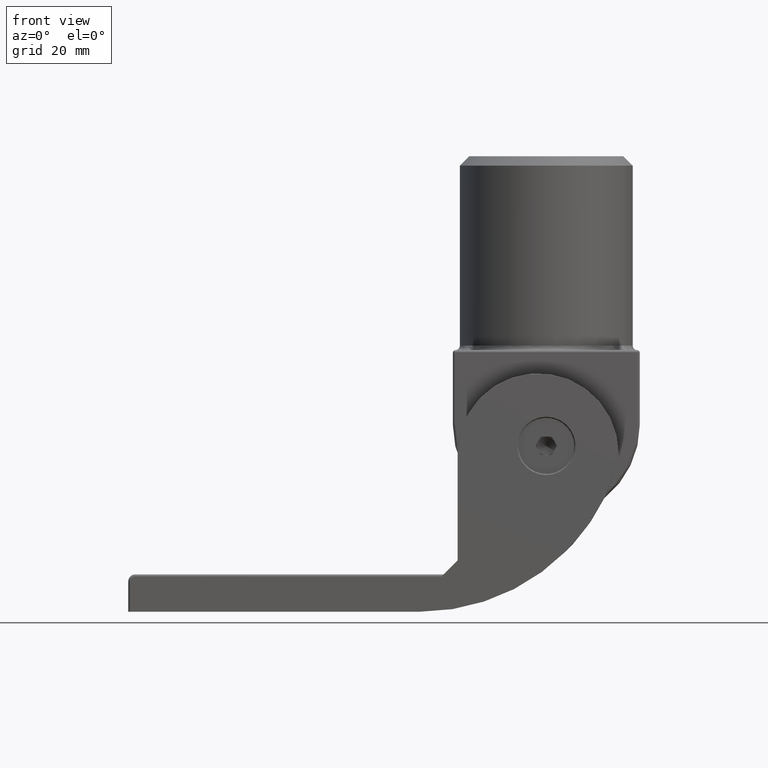
[diagram: clean part render]
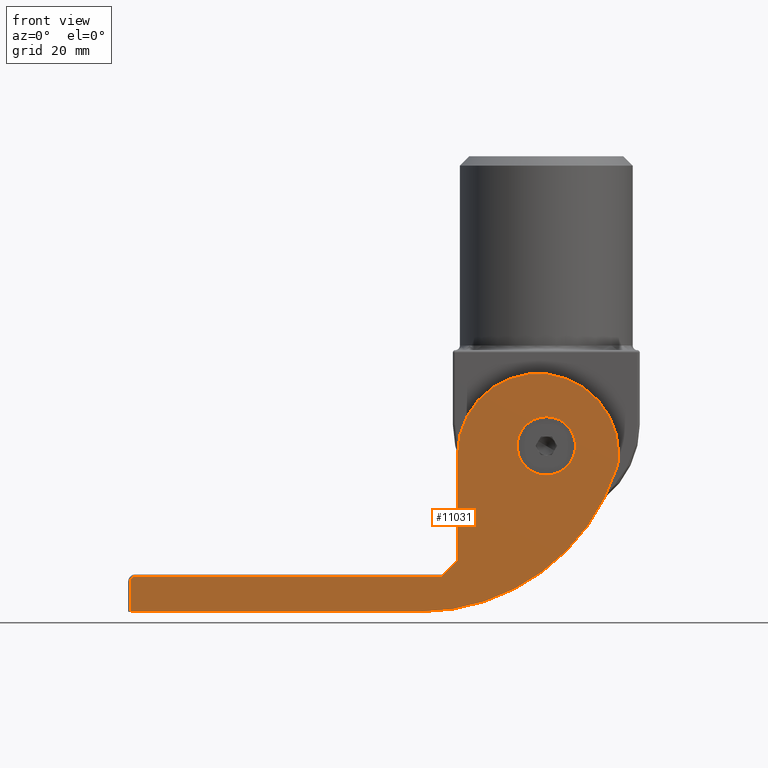
[diagram: same view with one face highlighted and labeled with its STEP entity id]
A machine part, front view. The second image highlights one B-rep face of the part: STEP entity #11031.
In plain terms, the highlighted planar face has unit normal (0, 1, 0).
Its self-contained STEP definition (entity closure, byte-faithful):
#58 = LINE ( 'NONE', #16326, #14629 ) ;
#383 = ORIENTED_EDGE ( 'NONE', *, *, #2299, .F. ) ;
#411 = CARTESIAN_POINT ( 'NONE',  ( 36.99999999999999289, -27.50000000000000355, 9.999999999999998224 ) ) ;
#693 = VECTOR ( 'NONE', #9463, 1000.000000000000000 ) ;
#738 = CARTESIAN_POINT ( 'NONE',  ( 17.99999999999998934, -27.50000000000000000, 8.249999999999992895 ) ) ;
#802 = VERTEX_POINT ( 'NONE', #15559 ) ;
#965 = ORIENTED_EDGE ( 'NONE', *, *, #8156, .T. ) ;
#1039 = FACE_OUTER_BOUND ( 'NONE', #15273, .T. ) ;
#1104 = DIRECTION ( 'NONE',  ( 0.000000000000000000, 0.000000000000000000, 1.000000000000000000 ) ) ;
#1336 = CIRCLE ( 'NONE', #8662, 6.249999999999998224 ) ;
#1795 = DIRECTION ( 'NONE',  ( -0.000000000000000000, -1.000000000000000000, -0.000000000000000000 ) ) ;
#1885 = CARTESIAN_POINT ( 'NONE',  ( 9.999999999999980460, -27.50000000000000000, 18.61184210526317884 ) ) ;
#2009 = DIRECTION ( 'NONE',  ( 0.000000000000000000, 0.000000000000000000, -1.000000000000000000 ) ) ;
#2048 = CARTESIAN_POINT ( 'NONE',  ( 52.50000000000000711, -27.50000000000000000, 8.249999999999998224 ) ) ;
#2261 = CARTESIAN_POINT ( 'NONE',  ( 36.99999999999999289, -27.50000000000000355, 16.24999999999999645 ) ) ;
#2291 = CIRCLE ( 'NONE', #18201, 17.25000000000000711 ) ;
#2299 = EDGE_CURVE ( 'NONE', #14908, #17684, #18254, .T. ) ;
#2670 = LINE ( 'NONE', #20463, #693 ) ;
#2750 = CARTESIAN_POINT ( 'NONE',  ( -51.99999999999999289, -27.50000000000000000, -19.00000000000000000 ) ) ;
#2813 = CARTESIAN_POINT ( 'NONE',  ( -51.99999999999998579, -27.50000000000000000, -25.50000000000000000 ) ) ;
#3537 = AXIS2_PLACEMENT_3D ( 'NONE', #19921, #13930, #18761 ) ;
#3702 = CARTESIAN_POINT ( 'NONE',  ( 35.25000000000000000, -27.50000000000000000, 8.249999999999996447 ) ) ;
#3823 = CARTESIAN_POINT ( 'NONE',  ( 9.999999999999987566, -27.50000000000000000, -25.50000000000000000 ) ) ;
#3828 = VECTOR ( 'NONE', #18377, 1000.000000000000000 ) ;
#4080 = ORIENTED_EDGE ( 'NONE', *, *, #7517, .F. ) ;
#4738 = DIRECTION ( 'NONE',  ( -1.000000000000000000, -0.000000000000000000, -0.000000000000000000 ) ) ;
#4776 = DIRECTION ( 'NONE',  ( 8.673617379884036458E-16, -0.000000000000000000, -1.000000000000000000 ) ) ;
#5316 = DIRECTION ( 'NONE',  ( 0.000000000000000000, 0.000000000000000000, 1.000000000000000000 ) ) ;
#5402 = DIRECTION ( 'NONE',  ( 0.000000000000000000, 0.000000000000000000, 1.000000000000000000 ) ) ;
#5625 = ORIENTED_EDGE ( 'NONE', *, *, #15592, .T. ) ;
#6445 = ORIENTED_EDGE ( 'NONE', *, *, #11573, .F. ) ;
#6656 = EDGE_CURVE ( 'NONE', #17589, #14637, #1336, .T. ) ;
#6815 = DIRECTION ( 'NONE',  ( 0.000000000000000000, 1.000000000000000000, -0.000000000000000000 ) ) ;
#7074 = CIRCLE ( 'NONE', #15533, 44.11184210526318594 ) ;
#7088 = DIRECTION ( 'NONE',  ( -0.000000000000000000, -1.000000000000000000, -0.000000000000000000 ) ) ;
#7298 = PLANE ( 'NONE',  #20354 ) ;
#7505 = VECTOR ( 'NONE', #4738, 1000.000000000000000 ) ;
#7517 = EDGE_CURVE ( 'NONE', #17422, #19072, #17123, .T. ) ;
#8072 = CIRCLE ( 'NONE', #19123, 10.00000000000000533 ) ;
#8108 = VERTEX_POINT ( 'NONE', #738 ) ;
#8116 = CARTESIAN_POINT ( 'NONE',  ( 14.49999999999999289, -27.50000000000000000, -18.00000000000000000 ) ) ;
#8156 = EDGE_CURVE ( 'NONE', #15193, #17684, #16120, .T. ) ;
#8176 = CIRCLE ( 'NONE', #9276, 1.000000000000000888 ) ;
#8514 = DIRECTION ( 'NONE',  ( 0.000000000000000000, 1.000000000000000000, -0.000000000000000000 ) ) ;
#8662 = AXIS2_PLACEMENT_3D ( 'NONE', #411, #1795, #2009 ) ;
#9276 = AXIS2_PLACEMENT_3D ( 'NONE', #19674, #7088, #5402 ) ;
#9463 = DIRECTION ( 'NONE',  ( -1.000000000000000000, 0.000000000000000000, -0.000000000000000000 ) ) ;
#9484 = EDGE_CURVE ( 'NONE', #14095, #14908, #7074, .T. ) ;
#9526 = ORIENTED_EDGE ( 'NONE', *, *, #6656, .F. ) ;
#9890 = DIRECTION ( 'NONE',  ( 0.000000000000000000, 0.000000000000000000, -1.000000000000000000 ) ) ;
#10283 = ORIENTED_EDGE ( 'NONE', *, *, #10904, .F. ) ;
#10904 = EDGE_CURVE ( 'NONE', #8108, #14004, #2291, .T. ) ;
#11031 = ADVANCED_FACE ( 'NONE', ( #13592, #1039 ), #7298, .F. ) ;
#11351 = CIRCLE ( 'NONE', #3537, 6.249999999999998224 ) ;
#11573 = EDGE_CURVE ( 'NONE', #19072, #8108, #58, .T. ) ;
#11977 = EDGE_CURVE ( 'NONE', #14004, #14095, #8072, .T. ) ;
#12358 = CARTESIAN_POINT ( 'NONE',  ( 17.99999999999998934, -27.50000000000000000, -14.49999999999999822 ) ) ;
#12882 = ORIENTED_EDGE ( 'NONE', *, *, #11977, .F. ) ;
#13592 = FACE_BOUND ( 'NONE', #18567, .T. ) ;
#13820 = DIRECTION ( 'NONE',  ( 0.000000000000000000, -0.000000000000000000, 1.000000000000000000 ) ) ;
#13930 = DIRECTION ( 'NONE',  ( -0.000000000000000000, -1.000000000000000000, -0.000000000000000000 ) ) ;
#14004 = VERTEX_POINT ( 'NONE', #2048 ) ;
#14095 = VERTEX_POINT ( 'NONE', #16376 ) ;
#14629 = VECTOR ( 'NONE', #5316, 1000.000000000000000 ) ;
#14637 = VERTEX_POINT ( 'NONE', #18734 ) ;
#14908 = VERTEX_POINT ( 'NONE', #3823 ) ;
#14946 = ORIENTED_EDGE ( 'NONE', *, *, #17156, .T. ) ;
#15193 = VERTEX_POINT ( 'NONE', #2750 ) ;
#15273 = EDGE_LOOP ( 'NONE', ( #4080, #5625, #14946, #965, #383, #19644, #12882, #10283, #6445 ) ) ;
#15533 = AXIS2_PLACEMENT_3D ( 'NONE', #1885, #6815, #9890 ) ;
#15559 = CARTESIAN_POINT ( 'NONE',  ( -50.99999999999999289, -27.50000000000000000, -18.00000000000000000 ) ) ;
#15592 = EDGE_CURVE ( 'NONE', #17422, #802, #2670, .T. ) ;
#16120 = LINE ( 'NONE', #17114, #19339 ) ;
#16326 = CARTESIAN_POINT ( 'NONE',  ( 17.99999999999998934, -27.50000000000000000, -14.49999999999999822 ) ) ;
#16376 = CARTESIAN_POINT ( 'NONE',  ( 52.02748312439729972, -27.50000000000000000, 5.212391513982630897 ) ) ;
#16577 = DIRECTION ( 'NONE',  ( 0.000000000000000000, 0.000000000000000000, -1.000000000000000000 ) ) ;
#17114 = CARTESIAN_POINT ( 'NONE',  ( -52.00000000000001421, -27.50000000000000000, 8.249999999999920064 ) ) ;
#17123 = LINE ( 'NONE', #20012, #3828 ) ;
#17156 = EDGE_CURVE ( 'NONE', #802, #15193, #8176, .T. ) ;
#17422 = VERTEX_POINT ( 'NONE', #8116 ) ;
#17589 = VERTEX_POINT ( 'NONE', #2261 ) ;
#17662 = CARTESIAN_POINT ( 'NONE',  ( 42.49999999999999289, -27.50000000000000000, 8.249999999999996447 ) ) ;
#17684 = VERTEX_POINT ( 'NONE', #2813 ) ;
#18201 = AXIS2_PLACEMENT_3D ( 'NONE', #3702, #20022, #1104 ) ;
#18254 = LINE ( 'NONE', #18585, #7505 ) ;
#18377 = DIRECTION ( 'NONE',  ( 0.7071067811865471286, 0.000000000000000000, 0.7071067811865479058 ) ) ;
#18450 = CARTESIAN_POINT ( 'NONE',  ( 35.25000000000000000, -27.50000000000000000, 8.249999999999996447 ) ) ;
#18567 = EDGE_LOOP ( 'NONE', ( #18709, #9526 ) ) ;
#18580 = DIRECTION ( 'NONE',  ( 0.000000000000000000, 1.000000000000000000, 0.000000000000000000 ) ) ;
#18585 = CARTESIAN_POINT ( 'NONE',  ( -52.49999999999998579, -27.50000000000000000, -25.50000000000000000 ) ) ;
#18709 = ORIENTED_EDGE ( 'NONE', *, *, #20075, .F. ) ;
#18734 = CARTESIAN_POINT ( 'NONE',  ( 36.99999999999999289, -27.50000000000000355, 3.750000000000000000 ) ) ;
#18761 = DIRECTION ( 'NONE',  ( 0.000000000000000000, 0.000000000000000000, -1.000000000000000000 ) ) ;
#19072 = VERTEX_POINT ( 'NONE', #12358 ) ;
#19123 = AXIS2_PLACEMENT_3D ( 'NONE', #17662, #8514, #16577 ) ;
#19339 = VECTOR ( 'NONE', #4776, 1000.000000000000000 ) ;
#19644 = ORIENTED_EDGE ( 'NONE', *, *, #9484, .F. ) ;
#19674 = CARTESIAN_POINT ( 'NONE',  ( -50.99999999999999289, -27.50000000000000000, -19.00000000000000000 ) ) ;
#19921 = CARTESIAN_POINT ( 'NONE',  ( 36.99999999999999289, -27.50000000000000355, 9.999999999999998224 ) ) ;
#20012 = CARTESIAN_POINT ( 'NONE',  ( 14.99999999999999289, -27.50000000000000000, -17.49999999999999645 ) ) ;
#20022 = DIRECTION ( 'NONE',  ( 0.000000000000000000, 1.000000000000000000, 0.000000000000000000 ) ) ;
#20075 = EDGE_CURVE ( 'NONE', #14637, #17589, #11351, .T. ) ;
#20354 = AXIS2_PLACEMENT_3D ( 'NONE', #18450, #18580, #13820 ) ;
#20463 = CARTESIAN_POINT ( 'NONE',  ( 35.25000000000000000, -27.50000000000000000, -18.00000000000000000 ) ) ;